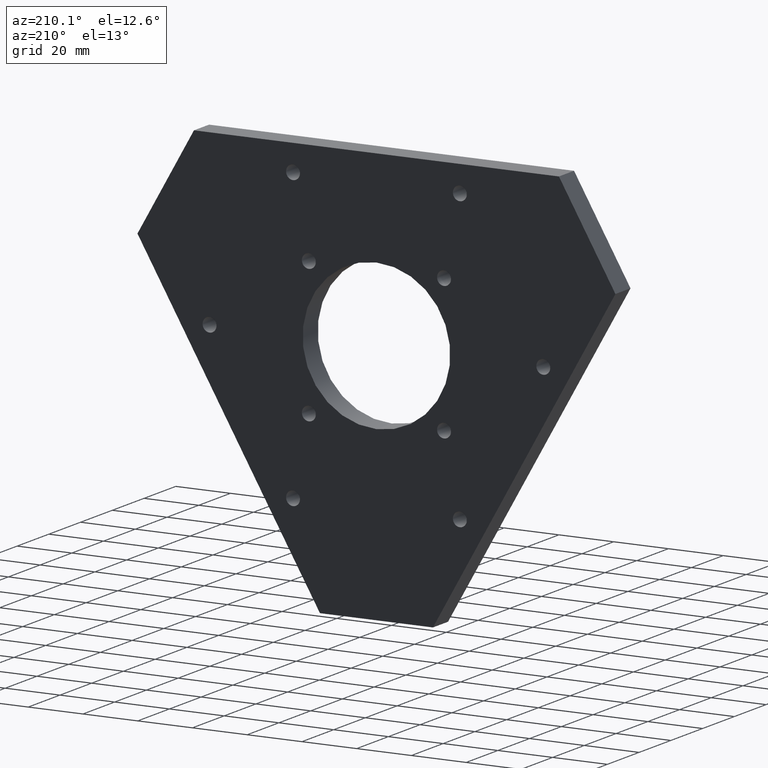
[diagram: clean part render]
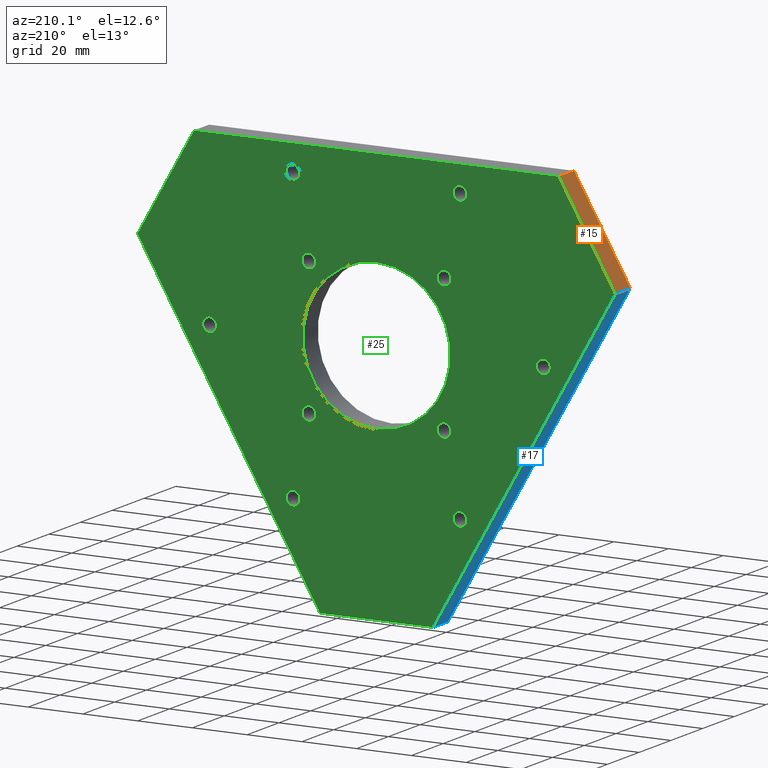
[diagram: same view with three faces highlighted in distinct colors, each labeled with its STEP entity id]
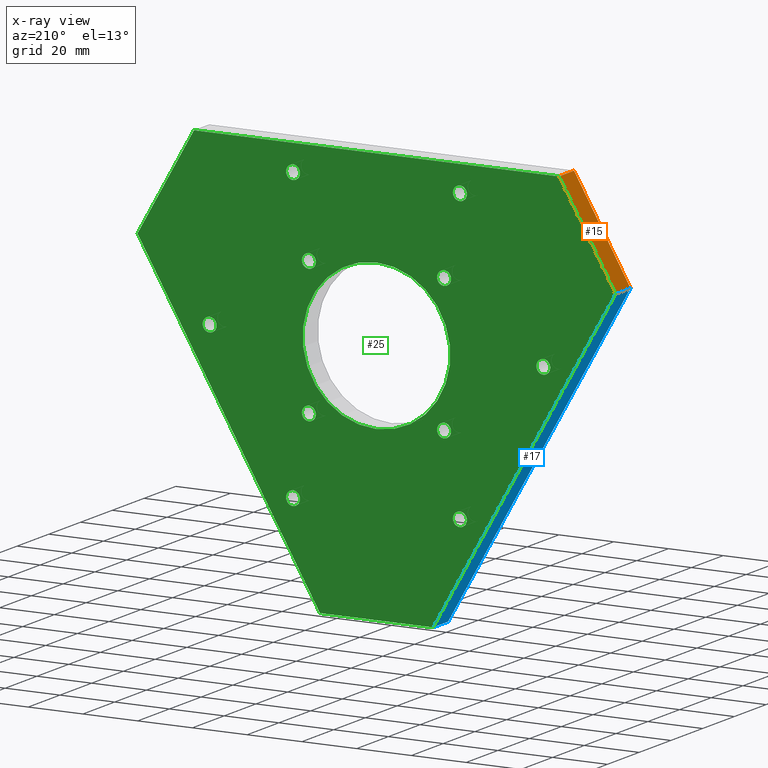
[diagram: x-ray of the same camera — body ghosted, the three highlighted faces saturated]
A machine part, auxiliary view with three faces highlighted in distinct colors.
The next image is the same camera in x-ray (body ghosted, the three faces saturated) — at least one of them is partly hidden behind the body in this view.
Their STEP definitions:

[orange] entity #15 — the highlighted planar face has unit normal (0.866, 0, -0.5).
#15 = ADVANCED_FACE ( 'NONE', ( #936 ), #334, .F. ) ;
#40 = VERTEX_POINT ( 'NONE', #201 ) ;
#41 = VERTEX_POINT ( 'NONE', #200 ) ;
#42 = VERTEX_POINT ( 'NONE', #199 ) ;
#99 = VERTEX_POINT ( 'NONE', #152 ) ;
#152 = CARTESIAN_POINT ( 'NONE',  ( -2.624785217660711800, 0.0000000000000000000, 2.453738644055909900 ) ) ;
#199 = CARTESIAN_POINT ( 'NONE',  ( -3.437392608830355900, 0.3750000000000000600, 1.046261355944089000 ) ) ;
#200 = CARTESIAN_POINT ( 'NONE',  ( -2.624785217660711800, 0.3750000000000000600, 2.453738644055909900 ) ) ;
#201 = CARTESIAN_POINT ( 'NONE',  ( -3.437392608830355900, 0.0000000000000000000, 1.046261355944089000 ) ) ;
#283 = DIRECTION ( 'NONE',  ( -0.0000000000000000000, -1.000000000000000000, -0.0000000000000000000 ) ) ;
#284 = CARTESIAN_POINT ( 'NONE',  ( -3.437392608830355900, 0.3750000000000000600, 1.046261355944089000 ) ) ;
#285 = DIRECTION ( 'NONE',  ( -0.0000000000000000000, -1.000000000000000000, -0.0000000000000000000 ) ) ;
#286 = CARTESIAN_POINT ( 'NONE',  ( -2.624785217660711800, 0.3750000000000000600, 2.453738644055909900 ) ) ;
#306 = DIRECTION ( 'NONE',  ( 0.5000000000000000000, 0.0000000000000000000, 0.8660254037844386000 ) ) ;
#307 = CARTESIAN_POINT ( 'NONE',  ( -3.437392608830355900, 0.0000000000000000000, 1.046261355944089000 ) ) ;
#324 = DIRECTION ( 'NONE',  ( -0.5000000000000000000, 0.0000000000000000000, -0.8660254037844386000 ) ) ;
#328 = DIRECTION ( 'NONE',  ( 0.8660254037844387100, 0.0000000000000000000, -0.5000000000000001100 ) ) ;
#331 = CARTESIAN_POINT ( 'NONE',  ( -3.437392608830355900, 0.3750000000000000600, 1.046261355944089000 ) ) ;
#334 = PLANE ( 'NONE',  #554 ) ;
#366 = DIRECTION ( 'NONE',  ( 0.5000000000000000000, 0.0000000000000000000, 0.8660254037844386000 ) ) ;
#368 = CARTESIAN_POINT ( 'NONE',  ( -3.437392608830355900, 0.3750000000000000600, 1.046261355944089000 ) ) ;
#554 = AXIS2_PLACEMENT_3D ( 'NONE', #331, #328, #324 ) ;
#623 = EDGE_CURVE ( 'NONE', #42, #41, #812, .T. ) ;
#640 = EDGE_CURVE ( 'NONE', #40, #99, #789, .T. ) ;
#647 = EDGE_CURVE ( 'NONE', #41, #99, #776, .T. ) ;
#648 = EDGE_CURVE ( 'NONE', #42, #40, #773, .T. ) ;
#772 = VECTOR ( 'NONE', #283, 39.37007874015748100 ) ;
#773 = LINE ( 'NONE', #284, #772 ) ;
#774 = VECTOR ( 'NONE', #285, 39.37007874015748100 ) ;
#776 = LINE ( 'NONE', #286, #774 ) ;
#787 = VECTOR ( 'NONE', #306, 39.37007874015748900 ) ;
#789 = LINE ( 'NONE', #307, #787 ) ;
#810 = VECTOR ( 'NONE', #366, 39.37007874015748900 ) ;
#812 = LINE ( 'NONE', #368, #810 ) ;
#936 = FACE_OUTER_BOUND ( 'NONE', #1037, .T. ) ;
#982 = ORIENTED_EDGE ( 'NONE', *, *, #640, .T. ) ;
#983 = ORIENTED_EDGE ( 'NONE', *, *, #647, .F. ) ;
#984 = ORIENTED_EDGE ( 'NONE', *, *, #623, .F. ) ;
#985 = ORIENTED_EDGE ( 'NONE', *, *, #648, .T. ) ;
#1037 = EDGE_LOOP ( 'NONE', ( #982, #983, #984, #985 ) ) ;

[blue] entity #17 — the highlighted planar face has unit normal (0.866, -0, 0.5).
#17 = ADVANCED_FACE ( 'NONE', ( #934 ), #304, .F. ) ;
#39 = VERTEX_POINT ( 'NONE', #202 ) ;
#40 = VERTEX_POINT ( 'NONE', #201 ) ;
#42 = VERTEX_POINT ( 'NONE', #199 ) ;
#48 = VERTEX_POINT ( 'NONE', #194 ) ;
#194 = CARTESIAN_POINT ( 'NONE',  ( -0.8126073911696442000, 0.3750000000000000600, -3.500000000000000400 ) ) ;
#199 = CARTESIAN_POINT ( 'NONE',  ( -3.437392608830355900, 0.3750000000000000600, 1.046261355944089000 ) ) ;
#201 = CARTESIAN_POINT ( 'NONE',  ( -3.437392608830355900, 0.0000000000000000000, 1.046261355944089000 ) ) ;
#202 = CARTESIAN_POINT ( 'NONE',  ( -0.8126073911696442000, 0.0000000000000000000, -3.500000000000000400 ) ) ;
#272 = DIRECTION ( 'NONE',  ( -0.0000000000000000000, -1.000000000000000000, -0.0000000000000000000 ) ) ;
#274 = CARTESIAN_POINT ( 'NONE',  ( -0.8126073911696442000, 0.3750000000000000600, -3.500000000000000400 ) ) ;
#283 = DIRECTION ( 'NONE',  ( -0.0000000000000000000, -1.000000000000000000, -0.0000000000000000000 ) ) ;
#284 = CARTESIAN_POINT ( 'NONE',  ( -3.437392608830355900, 0.3750000000000000600, 1.046261355944089000 ) ) ;
#295 = DIRECTION ( 'NONE',  ( 0.4999999999999998300, 0.0000000000000000000, -0.8660254037844386000 ) ) ;
#298 = DIRECTION ( 'NONE',  ( 0.8660254037844387100, -0.0000000000000000000, 0.4999999999999998900 ) ) ;
#301 = CARTESIAN_POINT ( 'NONE',  ( -0.8126073911696442000, 0.3750000000000000600, -3.500000000000000400 ) ) ;
#303 = DIRECTION ( 'NONE',  ( -0.4999999999999998300, 0.0000000000000000000, 0.8660254037844386000 ) ) ;
#304 = PLANE ( 'NONE',  #552 ) ;
#305 = CARTESIAN_POINT ( 'NONE',  ( -0.8126073911696442000, 0.0000000000000000000, -3.500000000000000400 ) ) ;
#353 = DIRECTION ( 'NONE',  ( -0.4999999999999998300, 0.0000000000000000000, 0.8660254037844386000 ) ) ;
#354 = CARTESIAN_POINT ( 'NONE',  ( -0.8126073911696442000, 0.3750000000000000600, -3.500000000000000400 ) ) ;
#552 = AXIS2_PLACEMENT_3D ( 'NONE', #301, #298, #295 ) ;
#628 = EDGE_CURVE ( 'NONE', #48, #42, #801, .T. ) ;
#641 = EDGE_CURVE ( 'NONE', #39, #40, #786, .T. ) ;
#648 = EDGE_CURVE ( 'NONE', #42, #40, #773, .T. ) ;
#652 = EDGE_CURVE ( 'NONE', #48, #39, #765, .T. ) ;
#664 = ORIENTED_EDGE ( 'NONE', *, *, #628, .F. ) ;
#668 = ORIENTED_EDGE ( 'NONE', *, *, #652, .T. ) ;
#671 = ORIENTED_EDGE ( 'NONE', *, *, #648, .F. ) ;
#747 = ORIENTED_EDGE ( 'NONE', *, *, #641, .T. ) ;
#764 = VECTOR ( 'NONE', #272, 39.37007874015748100 ) ;
#765 = LINE ( 'NONE', #274, #764 ) ;
#772 = VECTOR ( 'NONE', #283, 39.37007874015748100 ) ;
#773 = LINE ( 'NONE', #284, #772 ) ;
#785 = VECTOR ( 'NONE', #303, 39.37007874015748900 ) ;
#786 = LINE ( 'NONE', #305, #785 ) ;
#800 = VECTOR ( 'NONE', #353, 39.37007874015748900 ) ;
#801 = LINE ( 'NONE', #354, #800 ) ;
#934 = FACE_OUTER_BOUND ( 'NONE', #1032, .T. ) ;
#1032 = EDGE_LOOP ( 'NONE', ( #747, #671, #664, #668 ) ) ;

[green] entity #25 — the highlighted planar face has unit normal (0, 1, 0).
#25 = ADVANCED_FACE ( 'NONE', ( #909, #908, #907, #906, #905, #904, #903, #902, #901, #900, #899, #898 ), #225, .T. ) ;
#37 = VERTEX_POINT ( 'NONE', #204 ) ;
#38 = VERTEX_POINT ( 'NONE', #203 ) ;
#41 = VERTEX_POINT ( 'NONE', #200 ) ;
#42 = VERTEX_POINT ( 'NONE', #199 ) ;
#46 = VERTEX_POINT ( 'NONE', #195 ) ;
#48 = VERTEX_POINT ( 'NONE', #194 ) ;
#51 = VERTEX_POINT ( 'NONE', #191 ) ;
#53 = VERTEX_POINT ( 'NONE', #189 ) ;
#54 = VERTEX_POINT ( 'NONE', #188 ) ;
#55 = VERTEX_POINT ( 'NONE', #187 ) ;
#58 = VERTEX_POINT ( 'NONE', #184 ) ;
#59 = VERTEX_POINT ( 'NONE', #183 ) ;
#62 = VERTEX_POINT ( 'NONE', #181 ) ;
#63 = VERTEX_POINT ( 'NONE', #180 ) ;
#66 = VERTEX_POINT ( 'NONE', #177 ) ;
#67 = VERTEX_POINT ( 'NONE', #176 ) ;
#71 = VERTEX_POINT ( 'NONE', #172 ) ;
#73 = VERTEX_POINT ( 'NONE', #170 ) ;
#74 = VERTEX_POINT ( 'NONE', #169 ) ;
#76 = VERTEX_POINT ( 'NONE', #167 ) ;
#78 = VERTEX_POINT ( 'NONE', #165 ) ;
#79 = DIRECTION ( 'NONE',  ( 0.0000000000000000000, 0.0000000000000000000, 1.000000000000000000 ) ) ;
#80 = VERTEX_POINT ( 'NONE', #164 ) ;
#81 = DIRECTION ( 'NONE',  ( -0.0000000000000000000, 1.000000000000000000, -0.0000000000000000000 ) ) ;
#84 = VERTEX_POINT ( 'NONE', #161 ) ;
#85 = VERTEX_POINT ( 'NONE', #160 ) ;
#86 = CARTESIAN_POINT ( 'NONE',  ( 1.200000000000003100, 0.3750000000000001100, 2.078460969082650800 ) ) ;
#90 = VERTEX_POINT ( 'NONE', #157 ) ;
#91 = VERTEX_POINT ( 'NONE', #156 ) ;
#93 = VERTEX_POINT ( 'NONE', #155 ) ;
#94 = VERTEX_POINT ( 'NONE', #154 ) ;
#107 = DIRECTION ( 'NONE',  ( 0.0000000000000000000, 0.0000000000000000000, 1.000000000000000000 ) ) ;
#108 = DIRECTION ( 'NONE',  ( -0.0000000000000000000, 1.000000000000000000, -0.0000000000000000000 ) ) ;
#109 = CARTESIAN_POINT ( 'NONE',  ( 0.9722718241314738400, 0.3750000000000000600, -0.9722718241315043700 ) ) ;
#117 = DIRECTION ( 'NONE',  ( 0.0000000000000000000, 0.0000000000000000000, 1.000000000000000000 ) ) ;
#118 = DIRECTION ( 'NONE',  ( -0.0000000000000000000, 1.000000000000000000, -0.0000000000000000000 ) ) ;
#119 = CARTESIAN_POINT ( 'NONE',  ( -0.9722718241315313500, 0.3750000000000000600, -0.9722718241314736200 ) ) ;
#127 = DIRECTION ( 'NONE',  ( 0.0000000000000000000, 0.0000000000000000000, 1.000000000000000000 ) ) ;
#128 = DIRECTION ( 'NONE',  ( -0.0000000000000000000, 1.000000000000000000, -0.0000000000000000000 ) ) ;
#129 = CARTESIAN_POINT ( 'NONE',  ( -0.9722718241315005900, 0.3750000000000000600, 0.9722718241315316800 ) ) ;
#137 = DIRECTION ( 'NONE',  ( 0.0000000000000000000, 0.0000000000000000000, 1.000000000000000000 ) ) ;
#138 = DIRECTION ( 'NONE',  ( -0.0000000000000000000, 1.000000000000000000, -0.0000000000000000000 ) ) ;
#139 = CARTESIAN_POINT ( 'NONE',  ( 0.9722718241315045900, 0.3750000000000000600, 0.9722718241315009300 ) ) ;
#154 = CARTESIAN_POINT ( 'NONE',  ( 1.301187224094062400E-016, 0.3750000000000000600, 1.062500000000000000 ) ) ;
#155 = CARTESIAN_POINT ( 'NONE',  ( 0.0000000000000000000, 0.3750000000000000600, -1.062500000000000000 ) ) ;
#156 = CARTESIAN_POINT ( 'NONE',  ( 2.400000000000000400, 0.3750000000000001100, 0.1005000000000238300 ) ) ;
#157 = CARTESIAN_POINT ( 'NONE',  ( 2.400000000000000400, 0.3750000000000001100, -0.1004999999999749300 ) ) ;
#160 = CARTESIAN_POINT ( 'NONE',  ( 1.199999999999939300, 0.3750000000000001100, -1.977960969082656500 ) ) ;
#161 = CARTESIAN_POINT ( 'NONE',  ( 1.199999999999939300, 0.3750000000000001100, -2.178960969082655500 ) ) ;
#164 = CARTESIAN_POINT ( 'NONE',  ( -1.200000000000061000, 0.3750000000000001100, -1.977960969082619000 ) ) ;
#165 = CARTESIAN_POINT ( 'NONE',  ( -1.200000000000061000, 0.3750000000000001100, -2.178960969082618200 ) ) ;
#167 = CARTESIAN_POINT ( 'NONE',  ( -2.400000000000029200, 0.3750000000000001100, 0.1005000000000526200 ) ) ;
#169 = CARTESIAN_POINT ( 'NONE',  ( -0.9722718241315005900, 0.3750000000000000600, 0.8717718241315317600 ) ) ;
#170 = CARTESIAN_POINT ( 'NONE',  ( -2.400000000000029200, 0.3750000000000001100, -0.1004999999999466900 ) ) ;
#172 = CARTESIAN_POINT ( 'NONE',  ( -0.9722718241315005900, 0.3750000000000000600, 1.072771824131531600 ) ) ;
#176 = CARTESIAN_POINT ( 'NONE',  ( -1.200000000000001500, 0.3750000000000001100, 2.178960969082651000 ) ) ;
#177 = CARTESIAN_POINT ( 'NONE',  ( -1.200000000000001500, 0.3750000000000001100, 1.977960969082651800 ) ) ;
#180 = CARTESIAN_POINT ( 'NONE',  ( 1.200000000000003100, 0.3750000000000001100, 2.178960969082650600 ) ) ;
#181 = CARTESIAN_POINT ( 'NONE',  ( 1.200000000000003100, 0.3750000000000001100, 1.977960969082651400 ) ) ;
#183 = CARTESIAN_POINT ( 'NONE',  ( 0.9722718241314738400, 0.3750000000000000600, -0.8717718241315044500 ) ) ;
#184 = CARTESIAN_POINT ( 'NONE',  ( 0.9722718241314738400, 0.3750000000000000600, -1.072771824131504300 ) ) ;
#187 = CARTESIAN_POINT ( 'NONE',  ( -0.9722718241315313500, 0.3750000000000000600, -0.8717718241314736900 ) ) ;
#188 = CARTESIAN_POINT ( 'NONE',  ( -0.9722718241315313500, 0.3750000000000000600, -1.072771824131473400 ) ) ;
#189 = CARTESIAN_POINT ( 'NONE',  ( 0.9722718241315045900, 0.3750000000000000600, 0.8717718241315010100 ) ) ;
#191 = CARTESIAN_POINT ( 'NONE',  ( 0.9722718241315045900, 0.3750000000000000600, 1.072771824131500700 ) ) ;
#194 = CARTESIAN_POINT ( 'NONE',  ( -0.8126073911696442000, 0.3750000000000000600, -3.500000000000000400 ) ) ;
#195 = CARTESIAN_POINT ( 'NONE',  ( 0.8126073911696439800, 0.3750000000000000600, -3.500000000000000000 ) ) ;
#199 = CARTESIAN_POINT ( 'NONE',  ( -3.437392608830355900, 0.3750000000000000600, 1.046261355944089000 ) ) ;
#200 = CARTESIAN_POINT ( 'NONE',  ( -2.624785217660711800, 0.3750000000000000600, 2.453738644055909900 ) ) ;
#203 = CARTESIAN_POINT ( 'NONE',  ( 2.624785217660712300, 0.3750000000000000600, 2.453738644055909900 ) ) ;
#204 = CARTESIAN_POINT ( 'NONE',  ( 3.437392608830355900, 0.3750000000000000600, 1.046261355944088800 ) ) ;
#222 = DIRECTION ( 'NONE',  ( 0.0000000000000000000, -0.0000000000000000000, 1.000000000000000000 ) ) ;
#223 = DIRECTION ( 'NONE',  ( 0.0000000000000000000, 1.000000000000000000, 0.0000000000000000000 ) ) ;
#224 = CARTESIAN_POINT ( 'NONE',  ( -2.624785217660711800, 0.3750000000000000600, 2.453738644055909900 ) ) ;
#225 = PLANE ( 'NONE',  #544 ) ;
#350 = DIRECTION ( 'NONE',  ( 0.0000000000000000000, 0.0000000000000000000, 1.000000000000000000 ) ) ;
#351 = DIRECTION ( 'NONE',  ( 0.0000000000000000000, 1.000000000000000000, 0.0000000000000000000 ) ) ;
#352 = CARTESIAN_POINT ( 'NONE',  ( 0.0000000000000000000, 0.3750000000000000600, 0.0000000000000000000 ) ) ;
#353 = DIRECTION ( 'NONE',  ( -0.4999999999999998300, 0.0000000000000000000, 0.8660254037844386000 ) ) ;
#354 = CARTESIAN_POINT ( 'NONE',  ( -0.8126073911696442000, 0.3750000000000000600, -3.500000000000000400 ) ) ;
#355 = DIRECTION ( 'NONE',  ( -1.000000000000000000, 0.0000000000000000000, -3.361830108057617300E-016 ) ) ;
#357 = CARTESIAN_POINT ( 'NONE',  ( 0.8126073911696439800, 0.3750000000000000600, -3.500000000000000000 ) ) ;
#358 = DIRECTION ( 'NONE',  ( -0.4999999999999998900, 0.0000000000000000000, -0.8660254037844386000 ) ) ;
#359 = CARTESIAN_POINT ( 'NONE',  ( 3.437392608830355900, 0.3750000000000000600, 1.046261355944088800 ) ) ;
#361 = DIRECTION ( 'NONE',  ( 0.4999999999999997200, 0.0000000000000000000, -0.8660254037844388200 ) ) ;
#362 = CARTESIAN_POINT ( 'NONE',  ( 2.624785217660712300, 0.3750000000000000600, 2.453738644055909900 ) ) ;
#364 = DIRECTION ( 'NONE',  ( 1.000000000000000000, 0.0000000000000000000, 0.0000000000000000000 ) ) ;
#365 = CARTESIAN_POINT ( 'NONE',  ( -2.624785217660711800, 0.3750000000000000600, 2.453738644055909900 ) ) ;
#366 = DIRECTION ( 'NONE',  ( 0.5000000000000000000, 0.0000000000000000000, 0.8660254037844386000 ) ) ;
#368 = CARTESIAN_POINT ( 'NONE',  ( -3.437392608830355900, 0.3750000000000000600, 1.046261355944089000 ) ) ;
#369 = DIRECTION ( 'NONE',  ( 0.0000000000000000000, 0.0000000000000000000, 1.000000000000000000 ) ) ;
#370 = DIRECTION ( 'NONE',  ( -0.0000000000000000000, 1.000000000000000000, -0.0000000000000000000 ) ) ;
#371 = CARTESIAN_POINT ( 'NONE',  ( 2.400000000000000400, 0.3750000000000001100, 2.445003954329515600E-014 ) ) ;
#372 = DIRECTION ( 'NONE',  ( 0.0000000000000000000, 0.0000000000000000000, 1.000000000000000000 ) ) ;
#374 = DIRECTION ( 'NONE',  ( -0.0000000000000000000, 1.000000000000000000, -0.0000000000000000000 ) ) ;
#375 = CARTESIAN_POINT ( 'NONE',  ( 1.199999999999939300, 0.3750000000000001100, -2.078460969082655700 ) ) ;
#377 = DIRECTION ( 'NONE',  ( 0.0000000000000000000, 0.0000000000000000000, 1.000000000000000000 ) ) ;
#378 = DIRECTION ( 'NONE',  ( -0.0000000000000000000, 1.000000000000000000, -0.0000000000000000000 ) ) ;
#379 = CARTESIAN_POINT ( 'NONE',  ( -1.200000000000061000, 0.3750000000000001100, -2.078460969082618800 ) ) ;
#381 = DIRECTION ( 'NONE',  ( 0.0000000000000000000, 0.0000000000000000000, 1.000000000000000000 ) ) ;
#382 = DIRECTION ( 'NONE',  ( -0.0000000000000000000, 1.000000000000000000, -0.0000000000000000000 ) ) ;
#383 = CARTESIAN_POINT ( 'NONE',  ( -2.400000000000029200, 0.3750000000000001100, 5.295852917287431900E-014 ) ) ;
#385 = DIRECTION ( 'NONE',  ( 0.0000000000000000000, 0.0000000000000000000, 1.000000000000000000 ) ) ;
#386 = DIRECTION ( 'NONE',  ( -0.0000000000000000000, 1.000000000000000000, -0.0000000000000000000 ) ) ;
#387 = CARTESIAN_POINT ( 'NONE',  ( -1.200000000000001500, 0.3750000000000001100, 2.078460969082651700 ) ) ;
#392 = DIRECTION ( 'NONE',  ( 0.0000000000000000000, 0.0000000000000000000, 1.000000000000000000 ) ) ;
#393 = DIRECTION ( 'NONE',  ( -0.0000000000000000000, 1.000000000000000000, -0.0000000000000000000 ) ) ;
#394 = CARTESIAN_POINT ( 'NONE',  ( 1.200000000000003100, 0.3750000000000001100, 2.078460969082650800 ) ) ;
#396 = DIRECTION ( 'NONE',  ( 0.0000000000000000000, 0.0000000000000000000, 1.000000000000000000 ) ) ;
#397 = DIRECTION ( 'NONE',  ( -0.0000000000000000000, 1.000000000000000000, -0.0000000000000000000 ) ) ;
#398 = CARTESIAN_POINT ( 'NONE',  ( 0.9722718241314738400, 0.3750000000000000600, -0.9722718241315043700 ) ) ;
#400 = DIRECTION ( 'NONE',  ( 0.0000000000000000000, 0.0000000000000000000, 1.000000000000000000 ) ) ;
#401 = DIRECTION ( 'NONE',  ( -0.0000000000000000000, 1.000000000000000000, -0.0000000000000000000 ) ) ;
#402 = CARTESIAN_POINT ( 'NONE',  ( -0.9722718241315313500, 0.3750000000000000600, -0.9722718241314736200 ) ) ;
#403 = DIRECTION ( 'NONE',  ( 0.0000000000000000000, 0.0000000000000000000, 1.000000000000000000 ) ) ;
#404 = DIRECTION ( 'NONE',  ( -0.0000000000000000000, 1.000000000000000000, -0.0000000000000000000 ) ) ;
#406 = CARTESIAN_POINT ( 'NONE',  ( -0.9722718241315005900, 0.3750000000000000600, 0.9722718241315316800 ) ) ;
#407 = DIRECTION ( 'NONE',  ( 0.0000000000000000000, 0.0000000000000000000, 1.000000000000000000 ) ) ;
#408 = DIRECTION ( 'NONE',  ( -0.0000000000000000000, 1.000000000000000000, -0.0000000000000000000 ) ) ;
#410 = CARTESIAN_POINT ( 'NONE',  ( 0.9722718241315045900, 0.3750000000000000600, 0.9722718241315009300 ) ) ;
#416 = DIRECTION ( 'NONE',  ( 0.0000000000000000000, 0.0000000000000000000, 1.000000000000000000 ) ) ;
#417 = DIRECTION ( 'NONE',  ( 0.0000000000000000000, 1.000000000000000000, 0.0000000000000000000 ) ) ;
#418 = CARTESIAN_POINT ( 'NONE',  ( 0.0000000000000000000, 0.3750000000000000600, 0.0000000000000000000 ) ) ;
#423 = DIRECTION ( 'NONE',  ( 0.0000000000000000000, 0.0000000000000000000, 1.000000000000000000 ) ) ;
#424 = DIRECTION ( 'NONE',  ( -0.0000000000000000000, 1.000000000000000000, -0.0000000000000000000 ) ) ;
#426 = CARTESIAN_POINT ( 'NONE',  ( 2.400000000000000400, 0.3750000000000001100, 2.445003954329515600E-014 ) ) ;
#437 = DIRECTION ( 'NONE',  ( 0.0000000000000000000, 0.0000000000000000000, 1.000000000000000000 ) ) ;
#438 = DIRECTION ( 'NONE',  ( -0.0000000000000000000, 1.000000000000000000, -0.0000000000000000000 ) ) ;
#439 = CARTESIAN_POINT ( 'NONE',  ( 1.199999999999939300, 0.3750000000000001100, -2.078460969082655700 ) ) ;
#450 = DIRECTION ( 'NONE',  ( 0.0000000000000000000, 0.0000000000000000000, 1.000000000000000000 ) ) ;
#451 = DIRECTION ( 'NONE',  ( -0.0000000000000000000, 1.000000000000000000, -0.0000000000000000000 ) ) ;
#452 = CARTESIAN_POINT ( 'NONE',  ( -1.200000000000061000, 0.3750000000000001100, -2.078460969082618800 ) ) ;
#463 = DIRECTION ( 'NONE',  ( 0.0000000000000000000, 0.0000000000000000000, 1.000000000000000000 ) ) ;
#464 = DIRECTION ( 'NONE',  ( -0.0000000000000000000, 1.000000000000000000, -0.0000000000000000000 ) ) ;
#466 = CARTESIAN_POINT ( 'NONE',  ( -2.400000000000029200, 0.3750000000000001100, 5.295852917287431900E-014 ) ) ;
#476 = DIRECTION ( 'NONE',  ( 0.0000000000000000000, 0.0000000000000000000, 1.000000000000000000 ) ) ;
#477 = DIRECTION ( 'NONE',  ( -0.0000000000000000000, 1.000000000000000000, -0.0000000000000000000 ) ) ;
#479 = CARTESIAN_POINT ( 'NONE',  ( -1.200000000000001500, 0.3750000000000001100, 2.078460969082651700 ) ) ;
#506 = AXIS2_PLACEMENT_3D ( 'NONE', #352, #351, #350 ) ;
#507 = AXIS2_PLACEMENT_3D ( 'NONE', #371, #370, #369 ) ;
#508 = AXIS2_PLACEMENT_3D ( 'NONE', #375, #374, #372 ) ;
#509 = AXIS2_PLACEMENT_3D ( 'NONE', #379, #378, #377 ) ;
#510 = AXIS2_PLACEMENT_3D ( 'NONE', #383, #382, #381 ) ;
#511 = AXIS2_PLACEMENT_3D ( 'NONE', #387, #386, #385 ) ;
#513 = AXIS2_PLACEMENT_3D ( 'NONE', #394, #393, #392 ) ;
#514 = AXIS2_PLACEMENT_3D ( 'NONE', #398, #397, #396 ) ;
#515 = AXIS2_PLACEMENT_3D ( 'NONE', #402, #401, #400 ) ;
#516 = AXIS2_PLACEMENT_3D ( 'NONE', #406, #404, #403 ) ;
#517 = AXIS2_PLACEMENT_3D ( 'NONE', #410, #408, #407 ) ;
#518 = AXIS2_PLACEMENT_3D ( 'NONE', #418, #417, #416 ) ;
#519 = AXIS2_PLACEMENT_3D ( 'NONE', #426, #424, #423 ) ;
#521 = AXIS2_PLACEMENT_3D ( 'NONE', #439, #438, #437 ) ;
#523 = AXIS2_PLACEMENT_3D ( 'NONE', #452, #451, #450 ) ;
#525 = AXIS2_PLACEMENT_3D ( 'NONE', #466, #464, #463 ) ;
#527 = AXIS2_PLACEMENT_3D ( 'NONE', #479, #477, #476 ) ;
#529 = AXIS2_PLACEMENT_3D ( 'NONE', #86, #81, #79 ) ;
#531 = AXIS2_PLACEMENT_3D ( 'NONE', #109, #108, #107 ) ;
#533 = AXIS2_PLACEMENT_3D ( 'NONE', #119, #118, #117 ) ;
#535 = AXIS2_PLACEMENT_3D ( 'NONE', #129, #128, #127 ) ;
#537 = AXIS2_PLACEMENT_3D ( 'NONE', #139, #138, #137 ) ;
#544 = AXIS2_PLACEMENT_3D ( 'NONE', #224, #223, #222 ) ;
#571 = EDGE_CURVE ( 'NONE', #53, #51, #883, .T. ) ;
#575 = EDGE_CURVE ( 'NONE', #74, #71, #877, .T. ) ;
#579 = EDGE_CURVE ( 'NONE', #54, #55, #871, .T. ) ;
#583 = EDGE_CURVE ( 'NONE', #58, #59, #865, .T. ) ;
#587 = EDGE_CURVE ( 'NONE', #62, #63, #859, .T. ) ;
#591 = EDGE_CURVE ( 'NONE', #66, #67, #853, .T. ) ;
#595 = EDGE_CURVE ( 'NONE', #73, #76, #847, .T. ) ;
#599 = EDGE_CURVE ( 'NONE', #78, #80, #841, .T. ) ;
#603 = EDGE_CURVE ( 'NONE', #84, #85, #835, .T. ) ;
#607 = EDGE_CURVE ( 'NONE', #90, #91, #829, .T. ) ;
#609 = EDGE_CURVE ( 'NONE', #93, #94, #826, .T. ) ;
#612 = EDGE_CURVE ( 'NONE', #51, #53, #822, .T. ) ;
#613 = EDGE_CURVE ( 'NONE', #71, #74, #821, .T. ) ;
#614 = EDGE_CURVE ( 'NONE', #55, #54, #820, .T. ) ;
#615 = EDGE_CURVE ( 'NONE', #59, #58, #819, .T. ) ;
#616 = EDGE_CURVE ( 'NONE', #63, #62, #818, .T. ) ;
#618 = EDGE_CURVE ( 'NONE', #67, #66, #816, .T. ) ;
#619 = EDGE_CURVE ( 'NONE', #76, #73, #815, .T. ) ;
#620 = EDGE_CURVE ( 'NONE', #80, #78, #814, .T. ) ;
#621 = EDGE_CURVE ( 'NONE', #85, #84, #813, .T. ) ;
#622 = EDGE_CURVE ( 'NONE', #91, #90, #811, .T. ) ;
#623 = EDGE_CURVE ( 'NONE', #42, #41, #812, .T. ) ;
#624 = EDGE_CURVE ( 'NONE', #41, #38, #809, .T. ) ;
#625 = EDGE_CURVE ( 'NONE', #38, #37, #807, .T. ) ;
#626 = EDGE_CURVE ( 'NONE', #37, #46, #805, .T. ) ;
#627 = EDGE_CURVE ( 'NONE', #46, #48, #803, .T. ) ;
#628 = EDGE_CURVE ( 'NONE', #48, #42, #801, .T. ) ;
#629 = EDGE_CURVE ( 'NONE', #94, #93, #799, .T. ) ;
#681 = ORIENTED_EDGE ( 'NONE', *, *, #591, .F. ) ;
#682 = ORIENTED_EDGE ( 'NONE', *, *, #619, .F. ) ;
#683 = ORIENTED_EDGE ( 'NONE', *, *, #595, .F. ) ;
#684 = ORIENTED_EDGE ( 'NONE', *, *, #620, .F. ) ;
#685 = ORIENTED_EDGE ( 'NONE', *, *, #599, .F. ) ;
#686 = ORIENTED_EDGE ( 'NONE', *, *, #621, .F. ) ;
#687 = ORIENTED_EDGE ( 'NONE', *, *, #603, .F. ) ;
#688 = ORIENTED_EDGE ( 'NONE', *, *, #622, .F. ) ;
#689 = ORIENTED_EDGE ( 'NONE', *, *, #607, .F. ) ;
#690 = ORIENTED_EDGE ( 'NONE', *, *, #623, .T. ) ;
#691 = ORIENTED_EDGE ( 'NONE', *, *, #624, .T. ) ;
#692 = ORIENTED_EDGE ( 'NONE', *, *, #625, .T. ) ;
#693 = ORIENTED_EDGE ( 'NONE', *, *, #626, .T. ) ;
#694 = ORIENTED_EDGE ( 'NONE', *, *, #627, .T. ) ;
#695 = ORIENTED_EDGE ( 'NONE', *, *, #628, .T. ) ;
#696 = ORIENTED_EDGE ( 'NONE', *, *, #609, .F. ) ;
#697 = ORIENTED_EDGE ( 'NONE', *, *, #629, .F. ) ;
#799 = CIRCLE ( 'NONE', #506, 1.062500000000000000 ) ;
#800 = VECTOR ( 'NONE', #353, 39.37007874015748900 ) ;
#801 = LINE ( 'NONE', #354, #800 ) ;
#802 = VECTOR ( 'NONE', #355, 39.37007874015748100 ) ;
#803 = LINE ( 'NONE', #357, #802 ) ;
#804 = VECTOR ( 'NONE', #358, 39.37007874015748900 ) ;
#805 = LINE ( 'NONE', #359, #804 ) ;
#806 = VECTOR ( 'NONE', #361, 39.37007874015748900 ) ;
#807 = LINE ( 'NONE', #362, #806 ) ;
#808 = VECTOR ( 'NONE', #364, 39.37007874015748100 ) ;
#809 = LINE ( 'NONE', #365, #808 ) ;
#810 = VECTOR ( 'NONE', #366, 39.37007874015748900 ) ;
#811 = CIRCLE ( 'NONE', #507, 0.1004999999999993800 ) ;
#812 = LINE ( 'NONE', #368, #810 ) ;
#813 = CIRCLE ( 'NONE', #508, 0.1004999999999993800 ) ;
#814 = CIRCLE ( 'NONE', #509, 0.1004999999999996500 ) ;
#815 = CIRCLE ( 'NONE', #510, 0.1004999999999996500 ) ;
#816 = CIRCLE ( 'NONE', #511, 0.1004999999999996500 ) ;
#818 = CIRCLE ( 'NONE', #513, 0.1004999999999996500 ) ;
#819 = CIRCLE ( 'NONE', #514, 0.1004999999999999200 ) ;
#820 = CIRCLE ( 'NONE', #515, 0.1004999999999999200 ) ;
#821 = CIRCLE ( 'NONE', #516, 0.1004999999999999200 ) ;
#822 = CIRCLE ( 'NONE', #517, 0.1004999999999999200 ) ;
#826 = CIRCLE ( 'NONE', #518, 1.062500000000000000 ) ;
#829 = CIRCLE ( 'NONE', #519, 0.1004999999999993800 ) ;
#835 = CIRCLE ( 'NONE', #521, 0.1004999999999993800 ) ;
#841 = CIRCLE ( 'NONE', #523, 0.1004999999999996500 ) ;
#847 = CIRCLE ( 'NONE', #525, 0.1004999999999996500 ) ;
#853 = CIRCLE ( 'NONE', #527, 0.1004999999999996500 ) ;
#859 = CIRCLE ( 'NONE', #529, 0.1004999999999996500 ) ;
#865 = CIRCLE ( 'NONE', #531, 0.1004999999999999200 ) ;
#871 = CIRCLE ( 'NONE', #533, 0.1004999999999999200 ) ;
#877 = CIRCLE ( 'NONE', #535, 0.1004999999999999200 ) ;
#883 = CIRCLE ( 'NONE', #537, 0.1004999999999999200 ) ;
#898 = FACE_BOUND ( 'NONE', #1044, .T. ) ;
#899 = FACE_OUTER_BOUND ( 'NONE', #1000, .T. ) ;
#900 = FACE_BOUND ( 'NONE', #1024, .T. ) ;
#901 = FACE_BOUND ( 'NONE', #1001, .T. ) ;
#902 = FACE_BOUND ( 'NONE', #1016, .T. ) ;
#903 = FACE_BOUND ( 'NONE', #1026, .T. ) ;
#904 = FACE_BOUND ( 'NONE', #1010, .T. ) ;
#905 = FACE_BOUND ( 'NONE', #1015, .T. ) ;
#906 = FACE_BOUND ( 'NONE', #1020, .T. ) ;
#907 = FACE_BOUND ( 'NONE', #1018, .T. ) ;
#908 = FACE_BOUND ( 'NONE', #1012, .T. ) ;
#909 = FACE_BOUND ( 'NONE', #1011, .T. ) ;
#1000 = EDGE_LOOP ( 'NONE', ( #690, #691, #692, #693, #694, #695 ) ) ;
#1001 = EDGE_LOOP ( 'NONE', ( #686, #687 ) ) ;
#1010 = EDGE_LOOP ( 'NONE', ( #1052, #681 ) ) ;
#1011 = EDGE_LOOP ( 'NONE', ( #1059, #1061 ) ) ;
#1012 = EDGE_LOOP ( 'NONE', ( #1058, #1057 ) ) ;
#1015 = EDGE_LOOP ( 'NONE', ( #1048, #1049 ) ) ;
#1016 = EDGE_LOOP ( 'NONE', ( #684, #685 ) ) ;
#1018 = EDGE_LOOP ( 'NONE', ( #1056, #1055 ) ) ;
#1020 = EDGE_LOOP ( 'NONE', ( #1054, #1053 ) ) ;
#1024 = EDGE_LOOP ( 'NONE', ( #688, #689 ) ) ;
#1026 = EDGE_LOOP ( 'NONE', ( #682, #683 ) ) ;
#1044 = EDGE_LOOP ( 'NONE', ( #696, #697 ) ) ;
#1048 = ORIENTED_EDGE ( 'NONE', *, *, #616, .F. ) ;
#1049 = ORIENTED_EDGE ( 'NONE', *, *, #587, .F. ) ;
#1052 = ORIENTED_EDGE ( 'NONE', *, *, #618, .F. ) ;
#1053 = ORIENTED_EDGE ( 'NONE', *, *, #583, .F. ) ;
#1054 = ORIENTED_EDGE ( 'NONE', *, *, #615, .F. ) ;
#1055 = ORIENTED_EDGE ( 'NONE', *, *, #579, .F. ) ;
#1056 = ORIENTED_EDGE ( 'NONE', *, *, #614, .F. ) ;
#1057 = ORIENTED_EDGE ( 'NONE', *, *, #575, .F. ) ;
#1058 = ORIENTED_EDGE ( 'NONE', *, *, #613, .F. ) ;
#1059 = ORIENTED_EDGE ( 'NONE', *, *, #612, .F. ) ;
#1061 = ORIENTED_EDGE ( 'NONE', *, *, #571, .F. ) ;